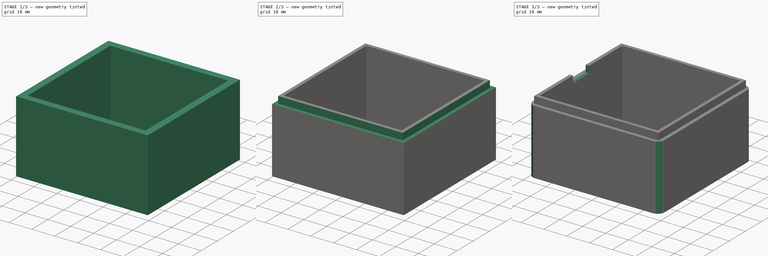
[diagram: build sequence overview — one tinted view per stage of 3, left to right]
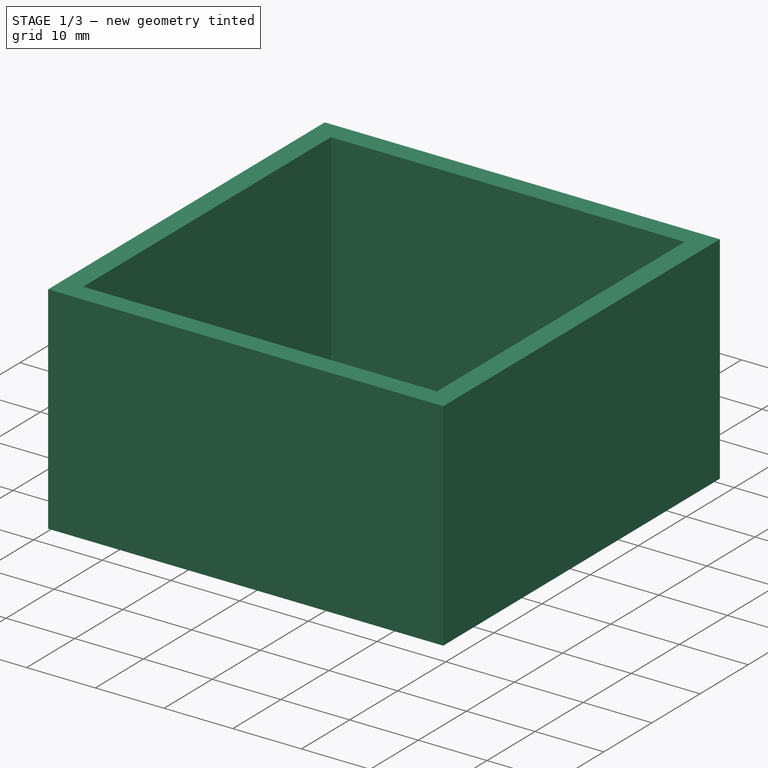
[diagram: stage 1 of 3 — iso view after this stage's code; geometry added in this stage tinted green]
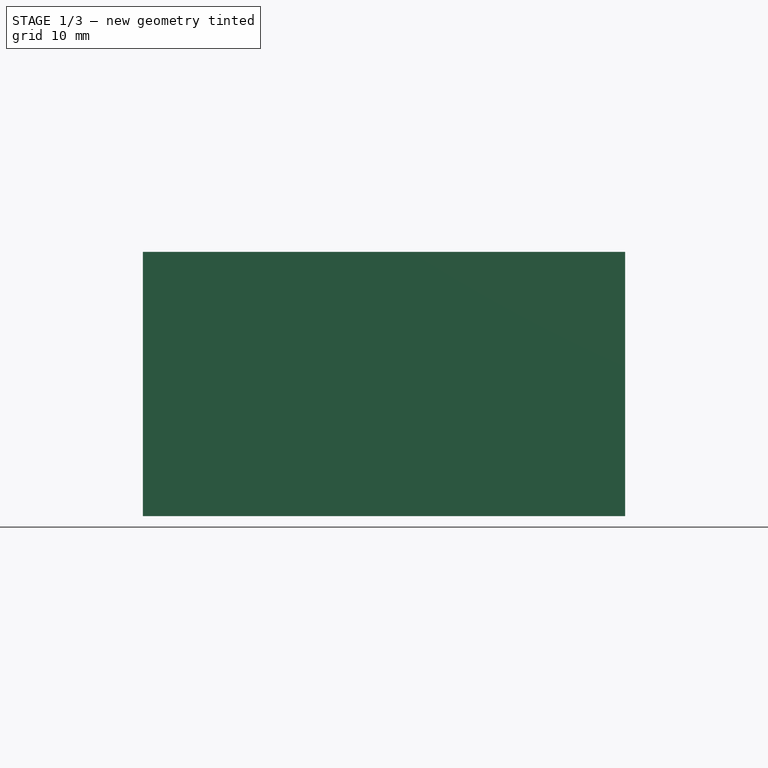
[diagram: stage 1 of 3 — front view after this stage's code; geometry added in this stage tinted green]
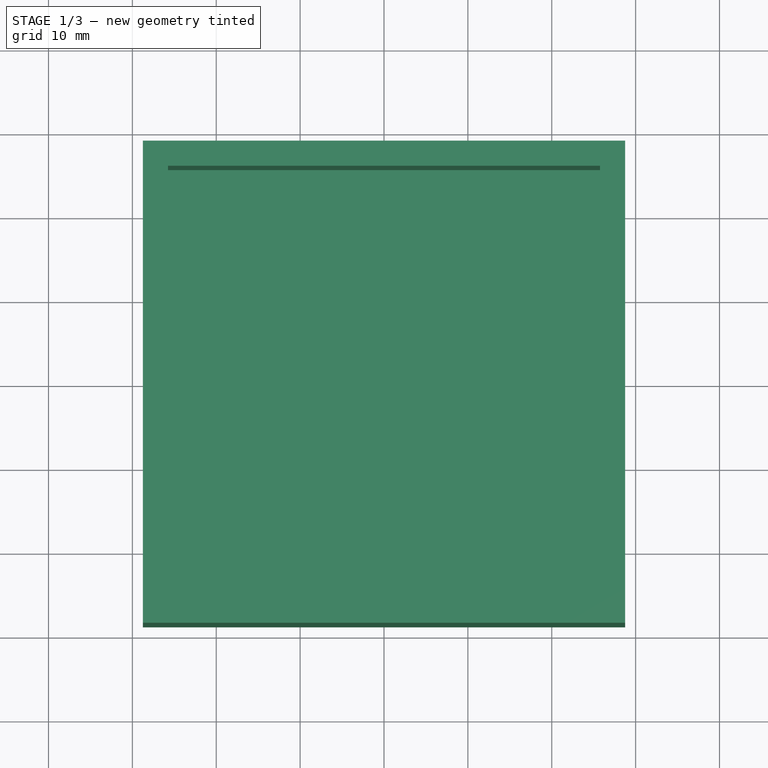
[diagram: stage 1 of 3 — top view after this stage's code; geometry added in this stage tinted green]
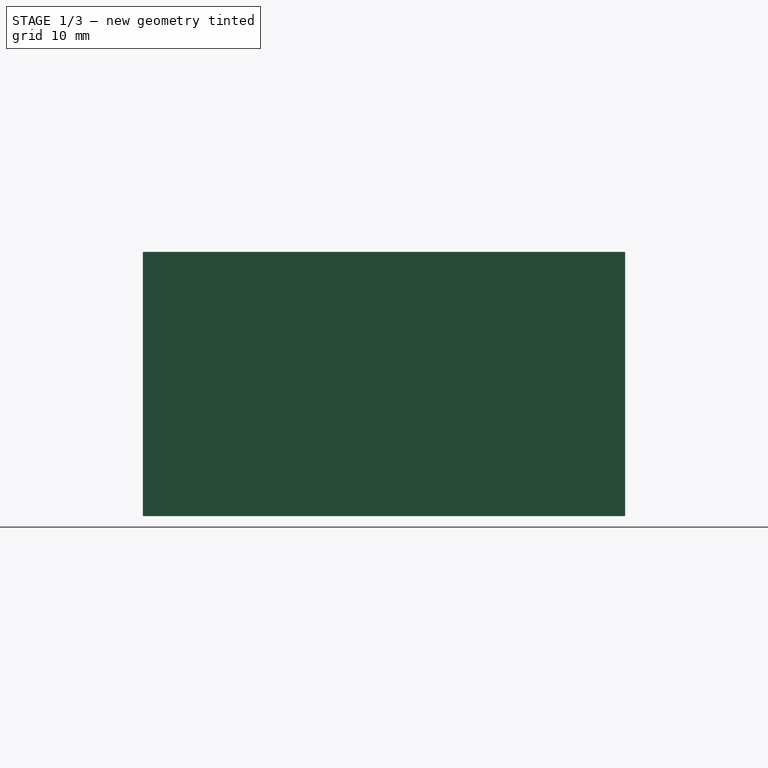
[diagram: stage 1 of 3 — right view after this stage's code; geometry added in this stage tinted green]
FCSTD DOCUMENT  (FreeCAD 0.20R29603 (Git))
Label: Top
License: All rights reserved
LicenseURL: http://en.wikipedia.org/wiki/All_rights_reserved
objects: Sketcher::SketchObject×4, PartDesign::Pad×2, PartDesign::Pocket×2, PartDesign::Fillet×1, PartDesign::Body×1
note: 15 computed .brp shape members not serialized (recipe doc carries the construction recipe); baked Part::Feature solids carry a one-line shape summary decoded from their .brp

FEATURE [Sketcher::SketchObject] Sketch
  FullyConstrained = true
  MapMode = 5
  sketch-geometry (6):
    g0: LineSegment StartX=-28.75 StartY=28.75 StartZ=0 EndX=28.75 EndY=28.75 EndZ=0
    g1: LineSegment StartX=28.75 StartY=28.75 StartZ=0 EndX=28.75 EndY=-28.75 EndZ=0
    g2: LineSegment StartX=28.75 StartY=-28.75 StartZ=0 EndX=-28.75 EndY=-28.75 EndZ=0
    g3: LineSegment StartX=-28.75 StartY=-28.75 StartZ=0 EndX=-28.75 EndY=28.75 EndZ=0
    g4: LineSegment StartX=-28.75 StartY=28.75 StartZ=0 EndX=28.75 EndY=-28.75 EndZ=0
    g5: LineSegment StartX=-28.75 StartY=-28.75 StartZ=0 EndX=28.75 EndY=28.75 EndZ=0
  constraints (16):
    c: Coincident(g0,g1)
    c: Coincident(g1,g2)
    c: Coincident(g2,g3)
    c: Coincident(g3,g0)
    c: Horizontal(g0)
    c: Horizontal(g2)
    c: Vertical(g1)
    c: Vertical(g3)
    c: Equal(g0,g1)
    c: DistanceY(g1,g1) = 57.5
    c: Coincident(g4,g0)
    c: Coincident(g4,g1)
    c: Coincident(g5,g2)
    c: Coincident(g5,g0)
    c: PointOnObject(g-1,g4)
    c: PointOnObject(g-1,g5)
FEATURE [PartDesign::Pad] Pad
  Direction = (0,0,1)
  Length = 1.5
  Length2 = 10
  Profile = -> Sketch
  ReferenceAxis = -> Sketch [N_Axis]
  Type = 0
FEATURE [Sketcher::SketchObject] Sketch001
  ExternalGeometry = -> [Pad]
  FullyConstrained = true
  MapMode = 5
  Placement = pos=(0,0,1.5) rot=(0,0,1;0rad)
  Support = -> [Pad]
  sketch-geometry (8):
    g0: LineSegment StartX=-28.75 StartY=28.75 StartZ=0 EndX=28.75 EndY=28.75 EndZ=0
    g1: LineSegment StartX=28.75 StartY=28.75 StartZ=0 EndX=28.75 EndY=-28.75 EndZ=0
    g2: LineSegment StartX=28.75 StartY=-28.75 StartZ=0 EndX=-28.75 EndY=-28.75 EndZ=0
    g3: LineSegment StartX=-28.75 StartY=-28.75 StartZ=0 EndX=-28.75 EndY=28.75 EndZ=0
    g4: LineSegment StartX=-25.75 StartY=25.75 StartZ=0 EndX=25.75 EndY=25.75 EndZ=0
    g5: LineSegment StartX=25.75 StartY=25.75 StartZ=0 EndX=25.75 EndY=-25.75 EndZ=0
    g6: LineSegment StartX=25.75 StartY=-25.75 StartZ=0 EndX=-25.75 EndY=-25.75 EndZ=0
    g7: LineSegment StartX=-25.75 StartY=-25.75 StartZ=0 EndX=-25.75 EndY=25.75 EndZ=0
  constraints (22):
    c: Coincident(g0,g1)
    c: Coincident(g1,g2)
    c: Coincident(g2,g3)
    c: Coincident(g3,g0)
    c: Horizontal(g0)
    c: Horizontal(g2)
    c: Vertical(g1)
    c: Vertical(g3)
    c: Coincident(g0,g-3)
    c: Coincident(g1,g-4)
    c: Coincident(g4,g5)
    c: Coincident(g5,g6)
    c: Coincident(g6,g7)
    c: Coincident(g7,g4)
    c: Horizontal(g4)
    c: Horizontal(g6)
    c: Vertical(g5)
    c: Vertical(g7)
    c: Equal(g6,g5)
    c: DistanceY(g1,g5) = 3
    c: DistanceY(g4,g0) = 3
    c: DistanceX(g5,g1) = 3
FEATURE [PartDesign::Pad] Pad001
  BaseFeature = -> Pad
  Direction = (0,0,1)
  Length = 30
  Length2 = 10
  Profile = -> Sketch001
  ReferenceAxis = -> Sketch001 [N_Axis]
  Type = 0
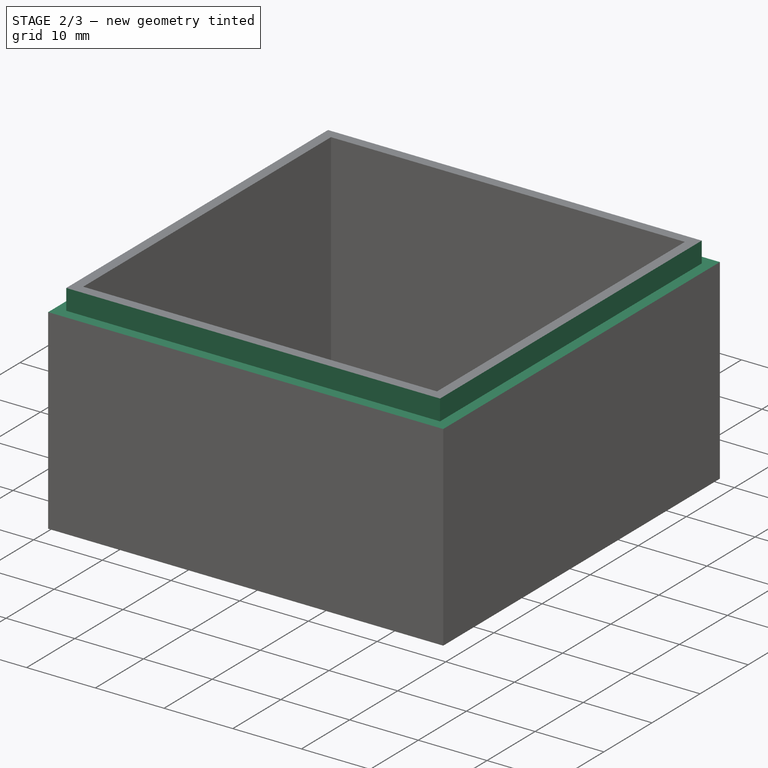
[diagram: stage 2 of 3 — iso view after this stage's code; geometry added in this stage tinted green]
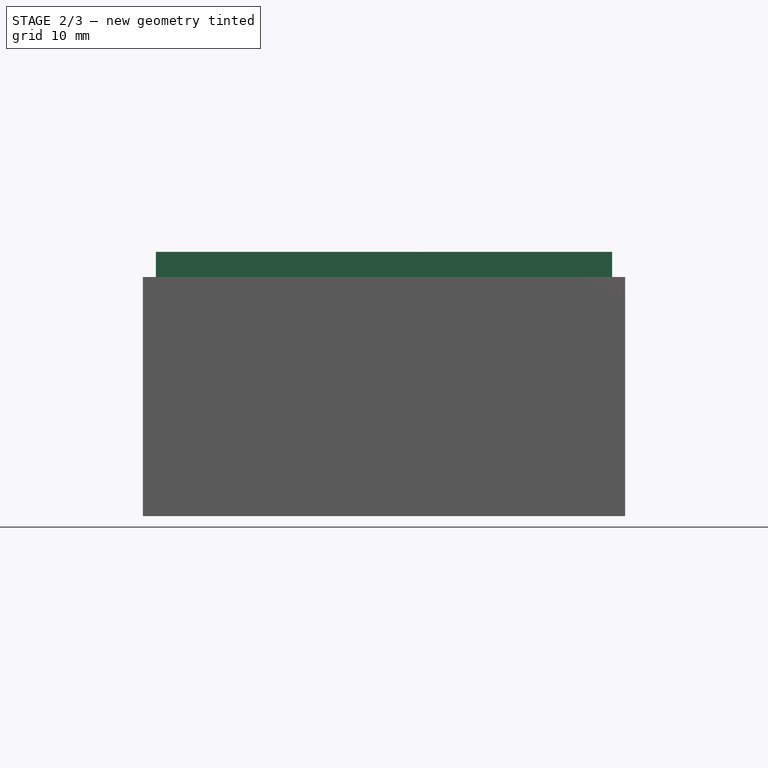
[diagram: stage 2 of 3 — front view after this stage's code; geometry added in this stage tinted green]
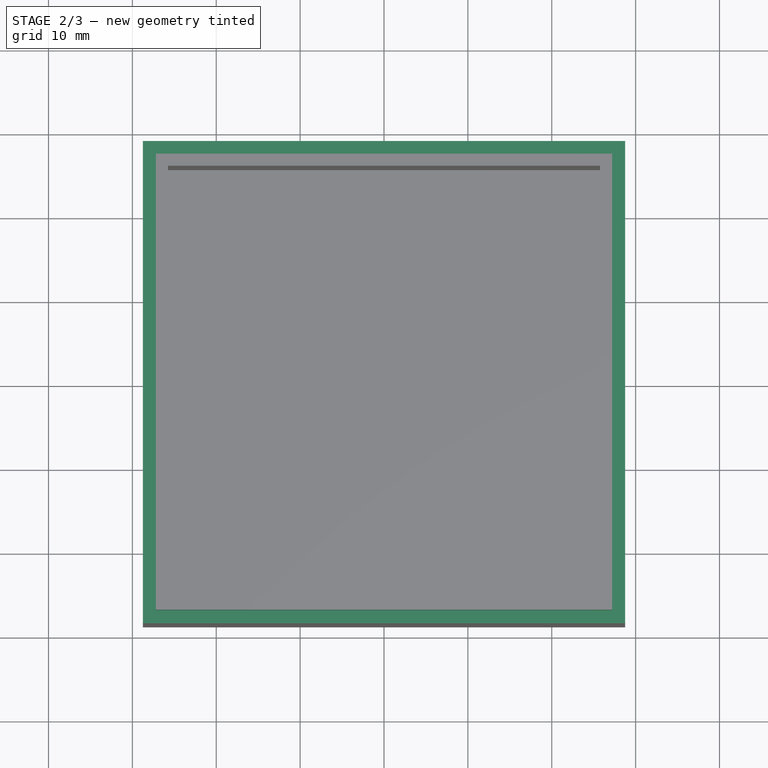
[diagram: stage 2 of 3 — top view after this stage's code; geometry added in this stage tinted green]
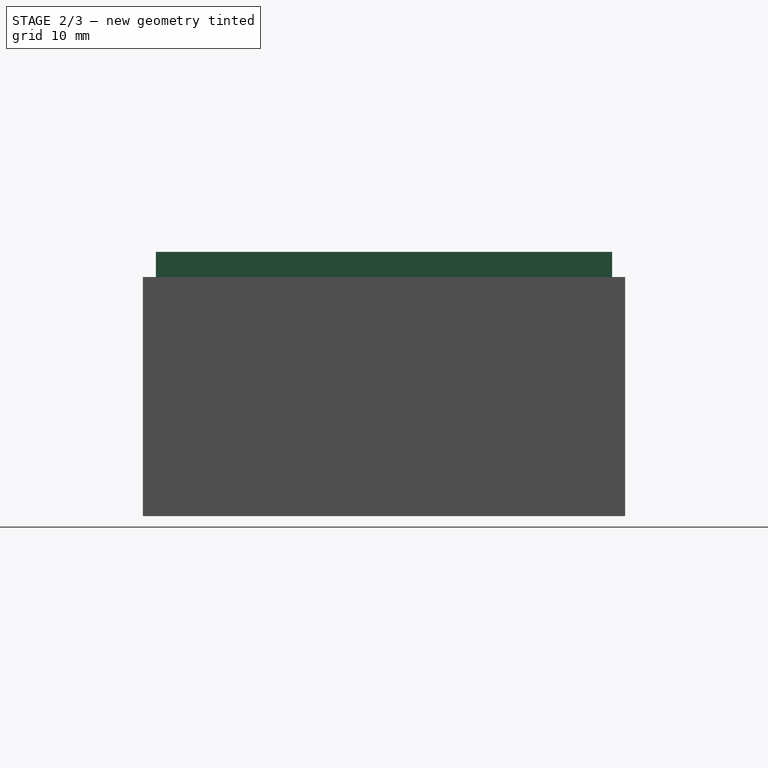
[diagram: stage 2 of 3 — right view after this stage's code; geometry added in this stage tinted green]
FEATURE [Sketcher::SketchObject] Sketch002
  ExternalGeometry = -> [Pad001]
  FullyConstrained = true
  MapMode = 5
  Placement = pos=(0,0,31.5) rot=(0,0,1;0rad)
  Support = -> [Pad001]
  sketch-geometry (8):
    g0: LineSegment StartX=-28.75 StartY=28.75 StartZ=0 EndX=28.75 EndY=28.75 EndZ=0
    g1: LineSegment StartX=28.75 StartY=28.75 StartZ=0 EndX=28.75 EndY=-28.75 EndZ=0
    g2: LineSegment StartX=28.75 StartY=-28.75 StartZ=0 EndX=-28.75 EndY=-28.75 EndZ=0
    g3: LineSegment StartX=-28.75 StartY=-28.75 StartZ=0 EndX=-28.75 EndY=28.75 EndZ=0
    g4: LineSegment StartX=-27.2 StartY=27.2 StartZ=0 EndX=27.2 EndY=27.2 EndZ=0
    g5: LineSegment StartX=27.2 StartY=27.2 StartZ=0 EndX=27.2 EndY=-27.2 EndZ=0
    g6: LineSegment StartX=27.2 StartY=-27.2 StartZ=0 EndX=-27.2 EndY=-27.2 EndZ=0
    g7: LineSegment StartX=-27.2 StartY=-27.2 StartZ=0 EndX=-27.2 EndY=27.2 EndZ=0
  constraints (22):
    c: Coincident(g0,g1)
    c: Coincident(g1,g2)
    c: Coincident(g2,g3)
    c: Coincident(g3,g0)
    c: Horizontal(g0)
    c: Horizontal(g2)
    c: Vertical(g1)
    c: Vertical(g3)
    c: Coincident(g0,g-3)
    c: Coincident(g1,g-4)
    c: Coincident(g4,g5)
    c: Coincident(g5,g6)
    c: Coincident(g6,g7)
    c: Coincident(g7,g4)
    c: Horizontal(g4)
    c: Horizontal(g6)
    c: Vertical(g5)
    c: Vertical(g7)
    c: DistanceX(g5,g1) = 1.55
    c: DistanceX(g0,g4) = 1.55
    c: DistanceY(g4,g0) = 1.55
    c: DistanceY(g1,g5) = 1.55
FEATURE [PartDesign::Pocket] Pocket
  BaseFeature = -> Pad001
  Direction = (0,0,-1)
  Length = 3
  Length2 = 5
  Profile = -> Sketch002
  ReferenceAxis = -> Sketch002 [N_Axis]
  Type = 0
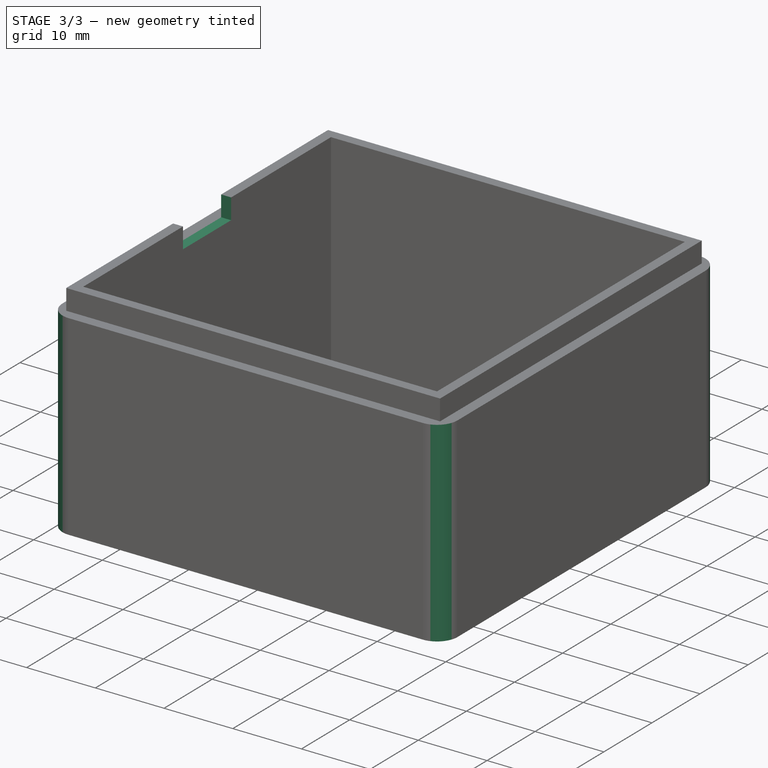
[diagram: stage 3 of 3 — iso view after this stage's code; geometry added in this stage tinted green]
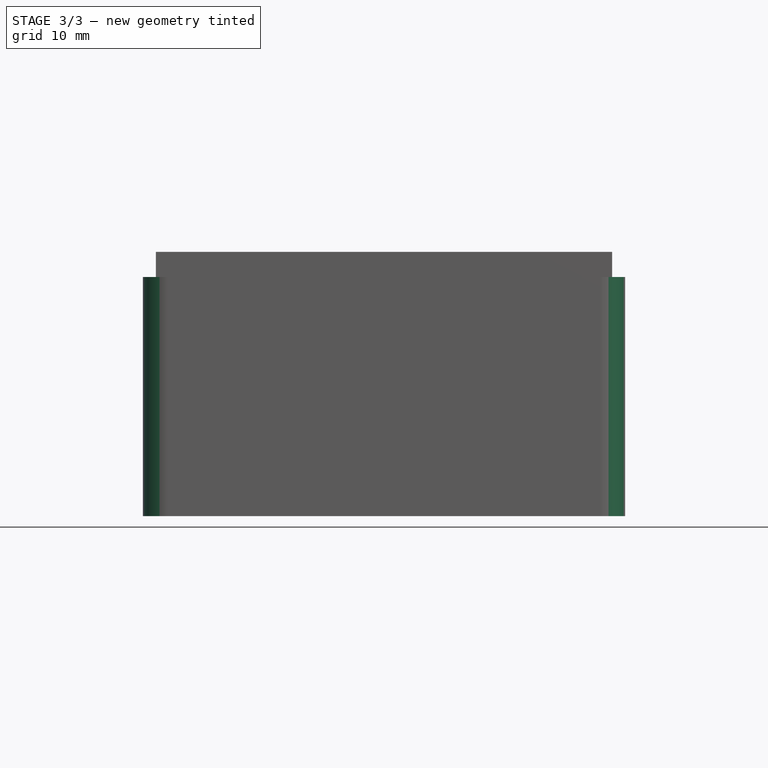
[diagram: stage 3 of 3 — front view after this stage's code; geometry added in this stage tinted green]
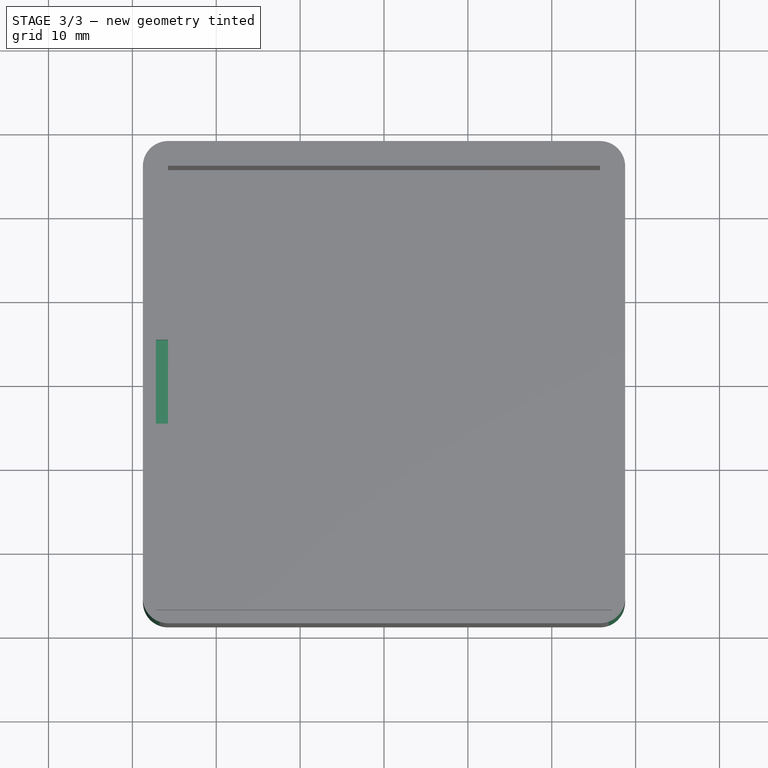
[diagram: stage 3 of 3 — top view after this stage's code; geometry added in this stage tinted green]
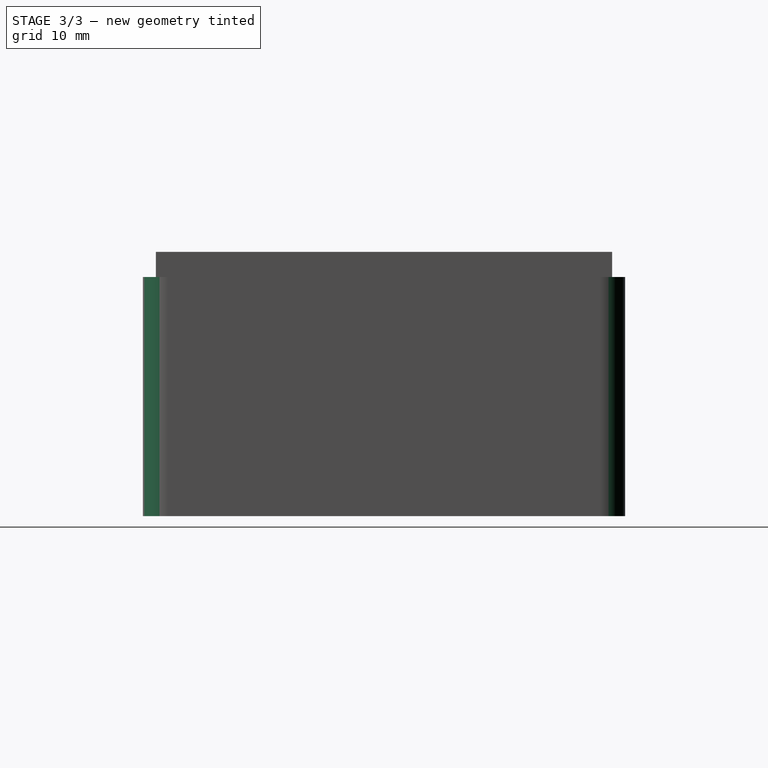
[diagram: stage 3 of 3 — right view after this stage's code; geometry added in this stage tinted green]
FEATURE [PartDesign::Fillet] Fillet
  Base = -> Pocket [Edge14,Edge1,Edge5,Edge17,Edge8,Edge18,Edge12,Edge2]
  BaseFeature = -> Pocket
  Radius = 3
  SupportTransform = false
  UseAllEdges = false
FEATURE [Sketcher::SketchObject] Sketch003
  ExternalGeometry = -> [Fillet]
  FullyConstrained = true
  MapMode = 5
  Placement = pos=(-27.2,0,0) rot=(0.57735,-0.57735,-0.57735;2.0944rad)
  Support = -> [Fillet]
  sketch-geometry (4):
    g0: LineSegment StartX=-5 StartY=31.5 StartZ=0 EndX=5 EndY=31.5 EndZ=0
    g1: LineSegment StartX=5 StartY=31.5 StartZ=0 EndX=5 EndY=28.5 EndZ=0
    g2: LineSegment StartX=5 StartY=28.5 StartZ=0 EndX=-5 EndY=28.5 EndZ=0
    g3: LineSegment StartX=-5 StartY=28.5 StartZ=0 EndX=-5 EndY=31.5 EndZ=0
  constraints (12):
    c: Coincident(g0,g1)
    c: Coincident(g1,g2)
    c: Coincident(g2,g3)
    c: Coincident(g3,g0)
    c: Horizontal(g0)
    c: Horizontal(g2)
    c: Vertical(g1)
    c: Vertical(g3)
    c: PointOnObject(g0,g-3)
    c: PointOnObject(g1,g-4)
    c: DistanceX(g0,g0) = 10
    c: DistanceX(g-1,g0) = 5
FEATURE [PartDesign::Pocket] Pocket001
  BaseFeature = -> Fillet
  Direction = (1,0,0)
  Length = 5
  Length2 = 5
  Profile = -> Sketch003
  ReferenceAxis = -> Sketch003 [N_Axis]
  Type = 0
FEATURE [PartDesign::Body] Body
  Group = -> [Sketch,Pad,Sketch001,Pad001,Sketch002,Pocket,Fillet,Sketch003,Pocket001]
  Origin = -> Origin
  Tip = -> Pocket001
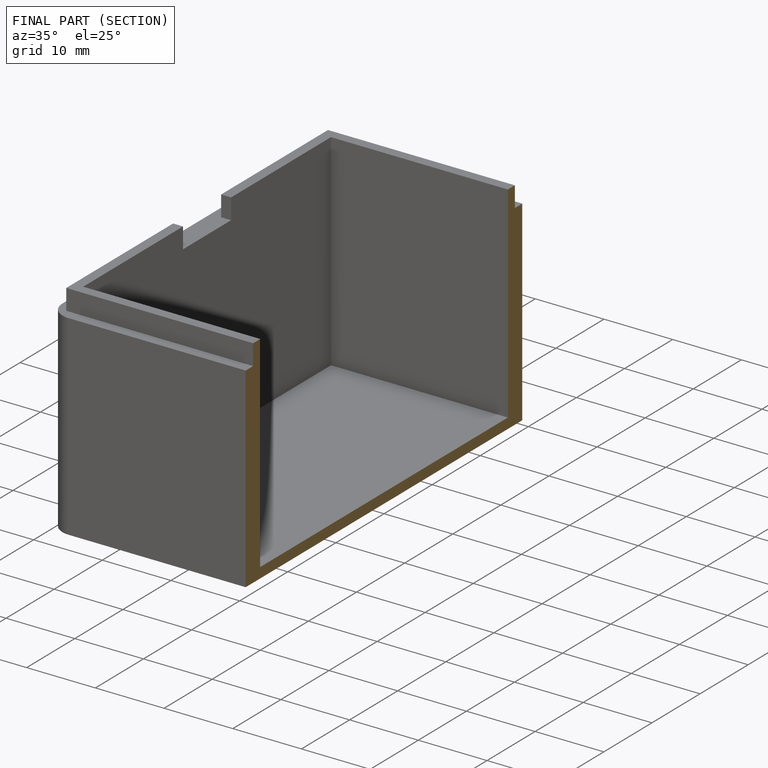
[diagram: finished part — half-section view (interior)]
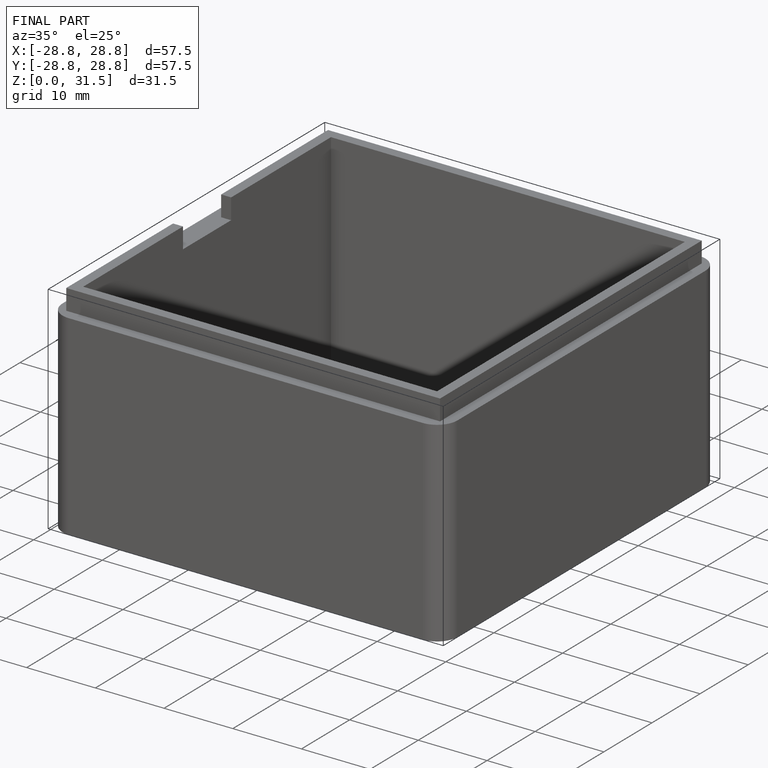
[diagram: finished part — iso view with bounding-box wireframe]
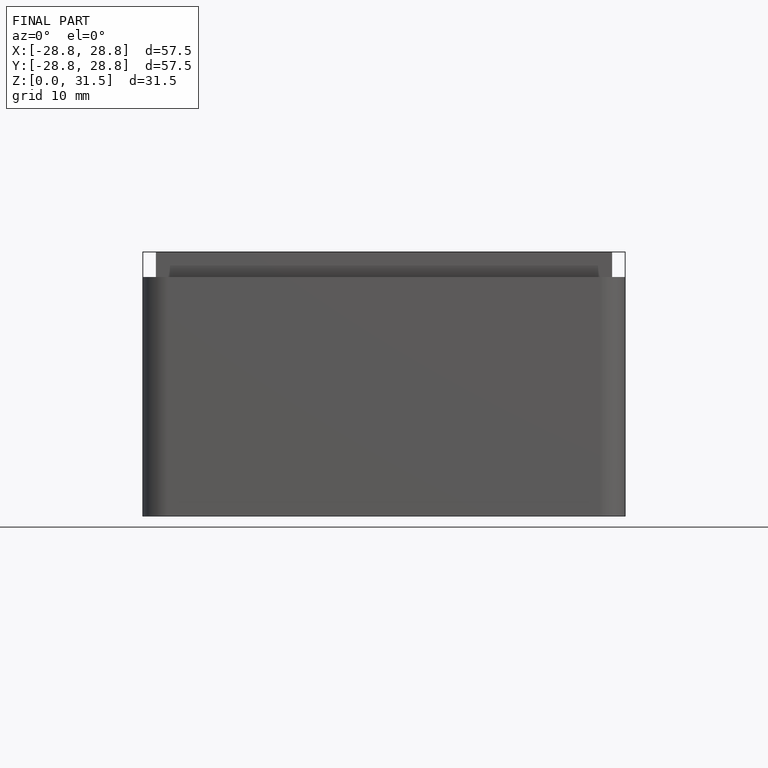
[diagram: finished part — front view with bounding-box wireframe]
